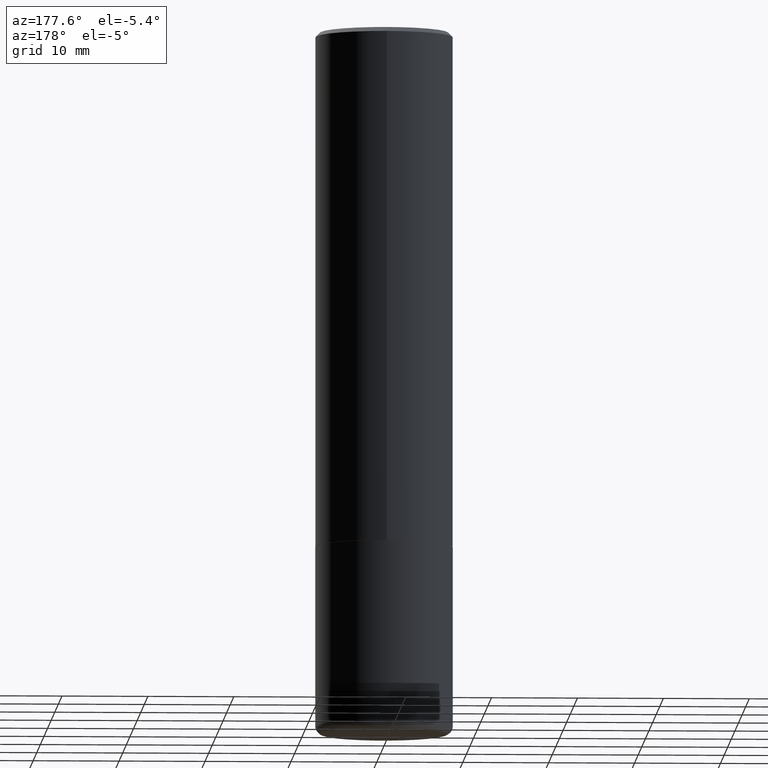
[diagram: clean part render]
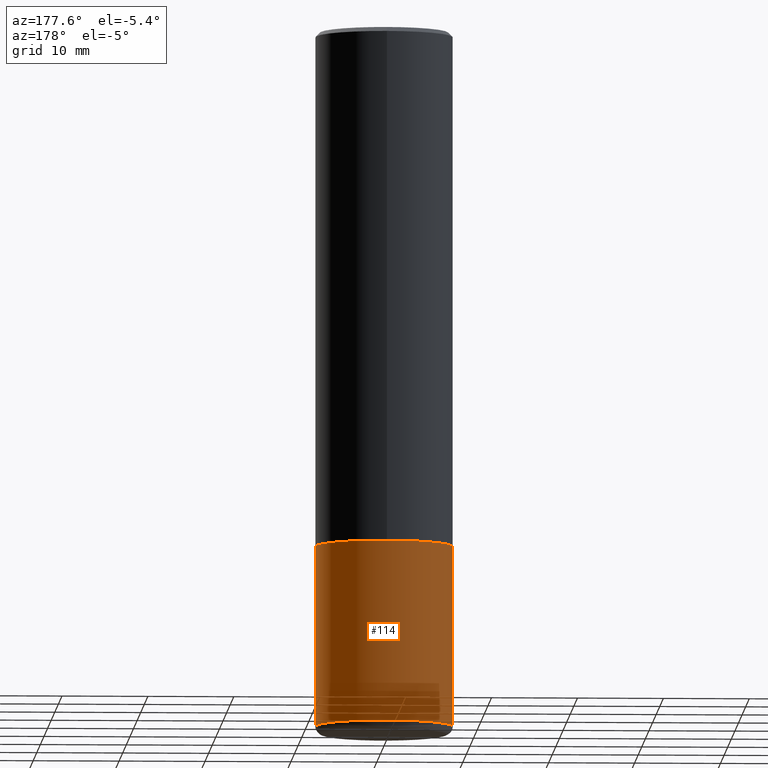
[diagram: same view with one face highlighted and labeled with its STEP entity id]
A machine part, auxiliary view. The second image highlights one B-rep face of the part: STEP entity #114.
In plain terms, the highlighted cylindrical surface (partial cylindrical patch) has radius 7.9997 mm, axis along (-0, 0, 1).
Its self-contained STEP definition (entity closure, byte-faithful):
#2 = VERTEX_POINT ( 'NONE', #276 ) ;
#3 = CARTESIAN_POINT ( 'NONE',  ( 0.3149500000000002853, -1.333326893677419946E-14, -3.188899999999999846 ) ) ;
#31 = ORIENTED_EDGE ( 'NONE', *, *, #186, .T. ) ;
#35 = VERTEX_POINT ( 'NONE', #306 ) ;
#56 = DIRECTION ( 'NONE',  ( 1.000000000000000000, -6.982962677686266711E-15, 4.876176775795936353E-29 ) ) ;
#62 = CARTESIAN_POINT ( 'NONE',  ( 0.3149500000000000077, -2.199284095337289871E-15, 1.535751875536930130E-29 ) ) ;
#75 = CIRCLE ( 'NONE', #315, 0.3149500000000000077 ) ;
#92 = DIRECTION ( 'NONE',  ( -2.445468806185136877E-29, 3.491481338843145188E-15, 1.000000000000000000 ) ) ;
#98 = ORIENTED_EDGE ( 'NONE', *, *, #335, .F. ) ;
#114 = ADVANCED_FACE ( 'NONE', ( #377 ), #410, .T. ) ;
#122 = DIRECTION ( 'NONE',  ( -2.445468806185136597E-29, 3.491481338843145583E-15, 1.000000000000000000 ) ) ;
#130 = VERTEX_POINT ( 'NONE', #246 ) ;
#154 = VECTOR ( 'NONE', #92, 39.37007874015748143 ) ;
#157 = CARTESIAN_POINT ( 'NONE',  ( -0.3149500000000000077, 2.237854346276435590E-15, -1.549218606675782676E-29 ) ) ;
#165 = EDGE_CURVE ( 'NONE', #2, #130, #184, .T. ) ;
#167 = DIRECTION ( 'NONE',  ( -2.445468806185136877E-29, 3.491481338843145188E-15, 1.000000000000000000 ) ) ;
#169 = AXIS2_PLACEMENT_3D ( 'NONE', #292, #314, #417 ) ;
#178 = DIRECTION ( 'NONE',  ( 1.000000000000000000, -6.982962677686263555E-15, 0.000000000000000000 ) ) ;
#184 = LINE ( 'NONE', #157, #154 ) ;
#186 = EDGE_CURVE ( 'NONE', #279, #2, #215, .T. ) ;
#187 = ORIENTED_EDGE ( 'NONE', *, *, #317, .F. ) ;
#207 = LINE ( 'NONE', #62, #263 ) ;
#215 = CIRCLE ( 'NONE', #169, 0.3149500000000000632 ) ;
#218 = EDGE_LOOP ( 'NONE', ( #31, #259, #98, #187 ) ) ;
#246 = CARTESIAN_POINT ( 'NONE',  ( -0.3149500000000000077, -7.452926683749658623E-15, -2.362200000000000077 ) ) ;
#259 = ORIENTED_EDGE ( 'NONE', *, *, #165, .T. ) ;
#263 = VECTOR ( 'NONE', #167, 39.37007874015748143 ) ;
#272 = CARTESIAN_POINT ( 'NONE',  ( 5.776686413970529753E-29, -8.247577218615279626E-15, -2.362200000000000077 ) ) ;
#276 = CARTESIAN_POINT ( 'NONE',  ( -0.3149500000000002853, -8.896130495160468872E-15, -3.188899999999999846 ) ) ;
#279 = VERTEX_POINT ( 'NONE', #3 ) ;
#292 = CARTESIAN_POINT ( 'NONE',  ( 7.798355476043781401E-29, -1.113398484143690801E-14, -3.188899999999999846 ) ) ;
#306 = CARTESIAN_POINT ( 'NONE',  ( 0.3149500000000000077, -1.044686131395256792E-14, -2.362200000000000077 ) ) ;
#311 = DIRECTION ( 'NONE',  ( -2.445468806185136597E-29, 3.491481338843145583E-15, 1.000000000000000000 ) ) ;
#313 = CARTESIAN_POINT ( 'NONE',  ( 0.000000000000000000, 0.000000000000000000, 0.000000000000000000 ) ) ;
#314 = DIRECTION ( 'NONE',  ( -2.445468806185136597E-29, 3.491481338843145583E-15, 1.000000000000000000 ) ) ;
#315 = AXIS2_PLACEMENT_3D ( 'NONE', #272, #311, #178 ) ;
#317 = EDGE_CURVE ( 'NONE', #279, #35, #207, .T. ) ;
#335 = EDGE_CURVE ( 'NONE', #35, #130, #75, .T. ) ;
#340 = AXIS2_PLACEMENT_3D ( 'NONE', #313, #122, #56 ) ;
#377 = FACE_OUTER_BOUND ( 'NONE', #218, .T. ) ;
#410 = CYLINDRICAL_SURFACE ( 'NONE', #340, 0.3149500000000000077 ) ;
#417 = DIRECTION ( 'NONE',  ( 1.000000000000000000, -6.982962677686268288E-15, 0.000000000000000000 ) ) ;